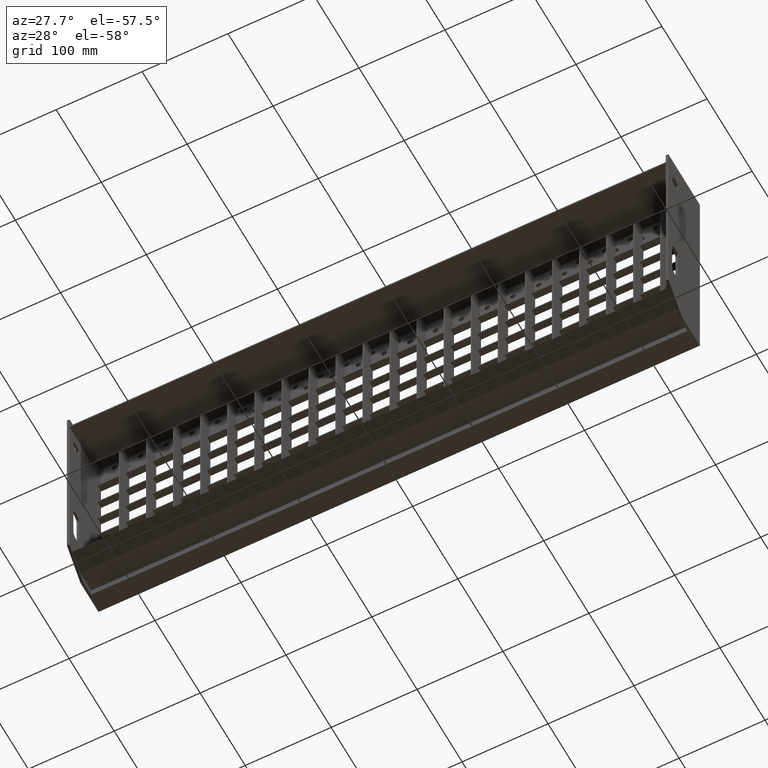
[diagram: clean part render]
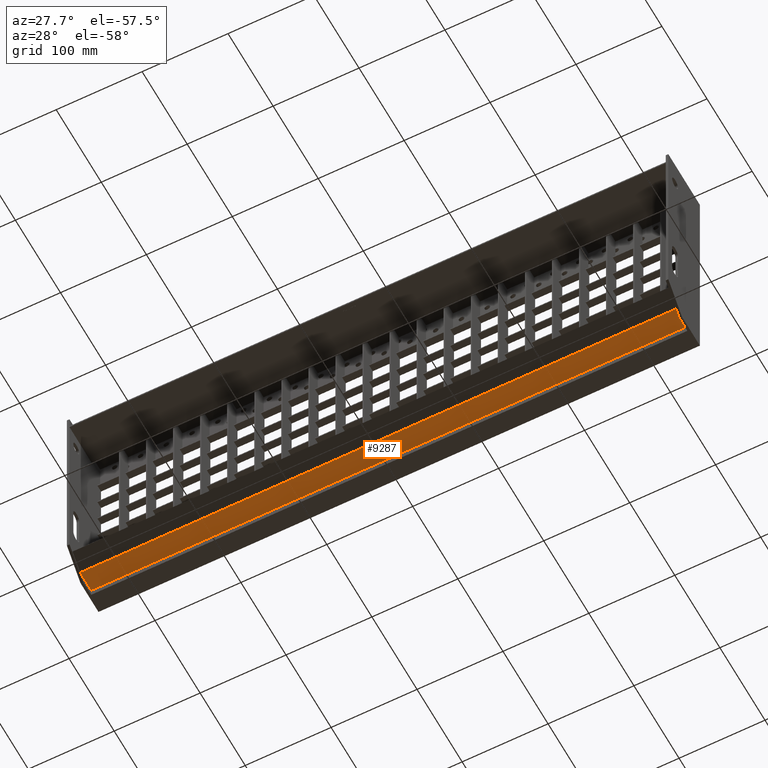
[diagram: same view with one face highlighted and labeled with its STEP entity id]
A machine part, auxiliary view. The second image highlights one B-rep face of the part: STEP entity #9287.
In plain terms, the highlighted planar face has unit normal (0, 0, 1).
Its self-contained STEP definition (entity closure, byte-faithful):
#84 = VECTOR ( 'NONE', #20361, 1000.000000000000000 ) ;
#537 = CARTESIAN_POINT ( 'NONE',  ( -423.1577310586389400, 48.00000000000012800, -261.5000000000000000 ) ) ;
#2506 = EDGE_LOOP ( 'NONE', ( #19985, #22154, #4697, #5830 ) ) ;
#2577 = VERTEX_POINT ( 'NONE', #12519 ) ;
#3840 = VECTOR ( 'NONE', #14745, 1000.000000000000000 ) ;
#4007 = EDGE_CURVE ( 'NONE', #22568, #17617, #17526, .T. ) ;
#4697 = ORIENTED_EDGE ( 'NONE', *, *, #22709, .T. ) ;
#4810 = PLANE ( 'NONE',  #20693 ) ;
#5830 = ORIENTED_EDGE ( 'NONE', *, *, #16007, .T. ) ;
#7181 = CARTESIAN_POINT ( 'NONE',  ( -347.0000000000000000, 23.62132034355956700, -261.5000000000000000 ) ) ;
#8086 = CARTESIAN_POINT ( 'NONE',  ( -423.1577310586389400, 23.62132034355959600, -261.5000000000000000 ) ) ;
#9287 = ADVANCED_FACE ( 'NONE', ( #17618 ), #4810, .F. ) ;
#9639 = EDGE_CURVE ( 'NONE', #22568, #21027, #12845, .T. ) ;
#10186 = CARTESIAN_POINT ( 'NONE',  ( -347.0000000000000000, 48.00000000000012800, -261.5000000000000000 ) ) ;
#11178 = DIRECTION ( 'NONE',  ( 0.0000000000000000000, -1.000000000000000000, 0.0000000000000000000 ) ) ;
#12519 = CARTESIAN_POINT ( 'NONE',  ( 347.0000000000000000, 48.00000000000012800, -261.5000000000000000 ) ) ;
#12845 = LINE ( 'NONE', #8086, #84 ) ;
#13321 = VECTOR ( 'NONE', #25934, 1000.000000000000000 ) ;
#13616 = CARTESIAN_POINT ( 'NONE',  ( -423.1577310586389400, 48.00000000000012800, -261.5000000000000000 ) ) ;
#14579 = LINE ( 'NONE', #13616, #13321 ) ;
#14745 = DIRECTION ( 'NONE',  ( 0.0000000000000000000, 1.000000000000000000, 0.0000000000000000000 ) ) ;
#15133 = DIRECTION ( 'NONE',  ( 1.000000000000000000, 0.0000000000000000000, -0.0000000000000000000 ) ) ;
#16007 = EDGE_CURVE ( 'NONE', #2577, #21027, #25799, .T. ) ;
#17526 = LINE ( 'NONE', #24689, #3840 ) ;
#17617 = VERTEX_POINT ( 'NONE', #10186 ) ;
#17618 = FACE_OUTER_BOUND ( 'NONE', #2506, .T. ) ;
#18799 = VECTOR ( 'NONE', #11178, 1000.000000000000000 ) ;
#19217 = CARTESIAN_POINT ( 'NONE',  ( 347.0000000000000000, 48.00000000000012800, -261.5000000000000000 ) ) ;
#19985 = ORIENTED_EDGE ( 'NONE', *, *, #9639, .F. ) ;
#20361 = DIRECTION ( 'NONE',  ( 1.000000000000000000, -0.0000000000000000000, -0.0000000000000000000 ) ) ;
#20693 = AXIS2_PLACEMENT_3D ( 'NONE', #537, #24991, #15133 ) ;
#20810 = CARTESIAN_POINT ( 'NONE',  ( 347.0000000000000000, 23.62132034355959600, -261.5000000000000000 ) ) ;
#21027 = VERTEX_POINT ( 'NONE', #20810 ) ;
#22154 = ORIENTED_EDGE ( 'NONE', *, *, #4007, .T. ) ;
#22568 = VERTEX_POINT ( 'NONE', #7181 ) ;
#22709 = EDGE_CURVE ( 'NONE', #17617, #2577, #14579, .T. ) ;
#24689 = CARTESIAN_POINT ( 'NONE',  ( -347.0000000000000000, 48.00000000000012800, -261.5000000000000000 ) ) ;
#24991 = DIRECTION ( 'NONE',  ( 0.0000000000000000000, 0.0000000000000000000, 1.000000000000000000 ) ) ;
#25799 = LINE ( 'NONE', #19217, #18799 ) ;
#25934 = DIRECTION ( 'NONE',  ( 1.000000000000000000, -0.0000000000000000000, -0.0000000000000000000 ) ) ;